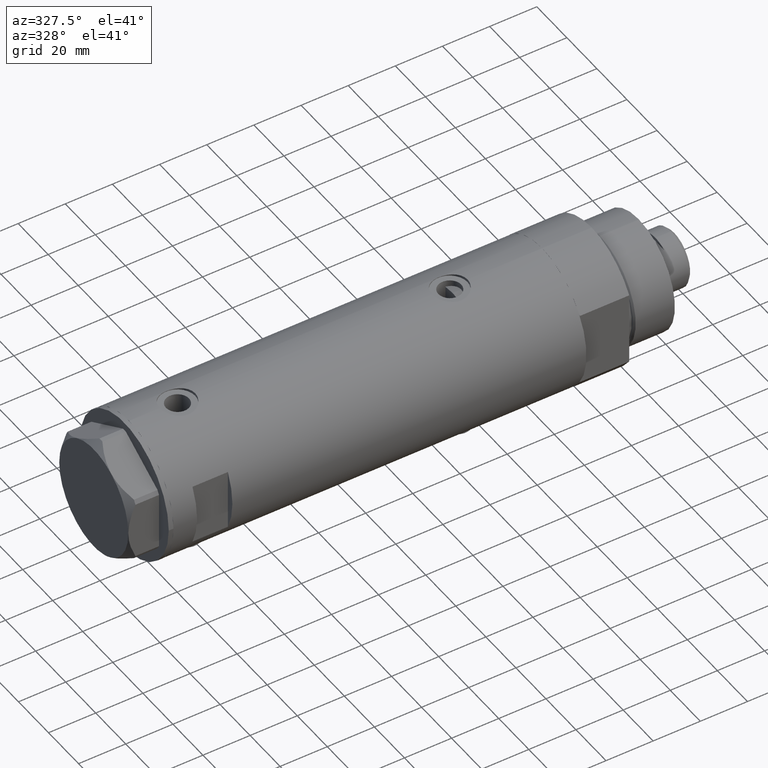
[diagram: clean part render]
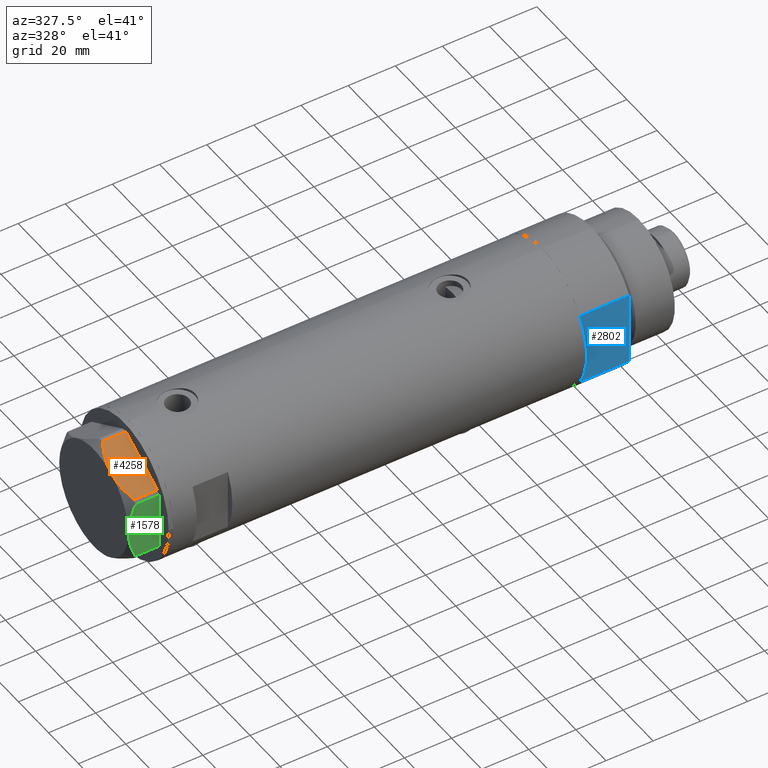
[diagram: same view with three faces highlighted in distinct colors, each labeled with its STEP entity id]
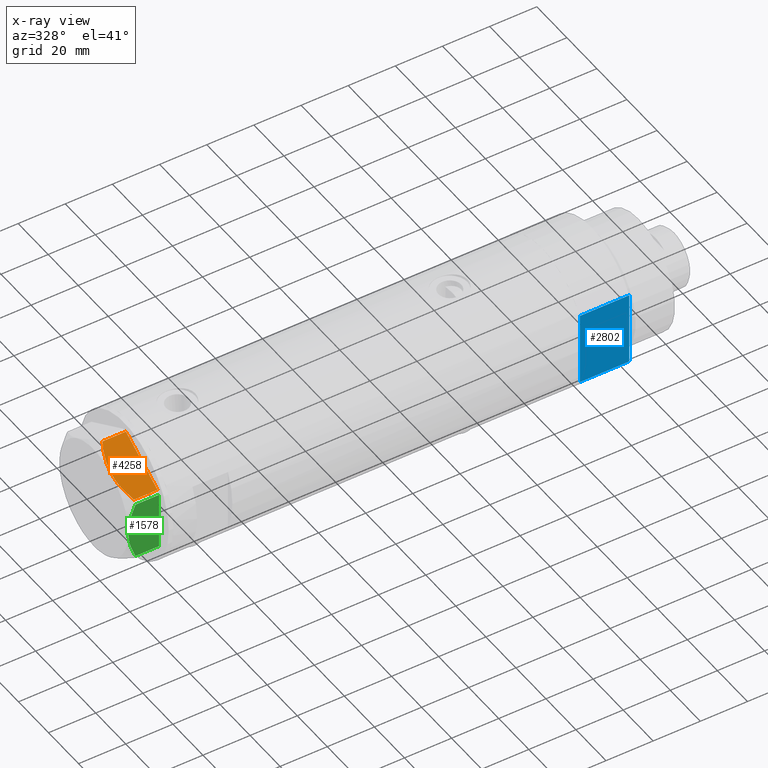
[diagram: x-ray of the same camera — body ghosted, the three highlighted faces saturated]
A machine part, auxiliary view with three faces highlighted in distinct colors.
The next image is the same camera in x-ray (body ghosted, the three faces saturated) — at least one of them is partly hidden behind the body in this view.
Their STEP definitions:

[orange] entity #4258 — the highlighted planar face has unit normal (-0, 0.5, -0.866).
#119 = DIRECTION ( 'NONE',  ( -0.000000000000000000, 0.000000000000000000, -1.000000000000000000 ) ) ;
#156 = CARTESIAN_POINT ( 'NONE',  ( -3.925137811029895563, -24.29193301091818213, 11.39727285399141365 ) ) ;
#220 = AXIS2_PLACEMENT_3D ( 'NONE', #2697, #1001, #325 ) ;
#224 = EDGE_CURVE ( 'NONE', #2280, #1416, #3265, .T. ) ;
#325 = DIRECTION ( 'NONE',  ( -0.8660254037844415942, 0.4999999999999950040, 0.000000000000000000 ) ) ;
#344 = FACE_OUTER_BOUND ( 'NONE', #2366, .T. ) ;
#367 = CARTESIAN_POINT ( 'NONE',  ( -11.49999999999990585, -19.91858428704219364, 13.00000000000000000 ) ) ;
#385 = CARTESIAN_POINT ( 'NONE',  ( -5.671686373602661035, -23.28356272816404271, 12.04068176582933702 ) ) ;
#460 = CARTESIAN_POINT ( 'NONE',  ( -5.229981517797923196, -23.53858114556527781, 11.89212886775844602 ) ) ;
#610 = DIRECTION ( 'NONE',  ( 0.8660254037844415942, -0.4999999999999950595, 0.000000000000000000 ) ) ;
#704 = CARTESIAN_POINT ( 'NONE',  ( -22.03005154776146313, -13.83905619136139364, 9.983800287807548912 ) ) ;
#778 = VERTEX_POINT ( 'NONE', #4168 ) ;
#870 = EDGE_CURVE ( 'NONE', #1416, #778, #1063, .T. ) ;
#938 = VECTOR ( 'NONE', #1657, 1000.000000000000000 ) ;
#973 = ORIENTED_EDGE ( 'NONE', *, *, #4438, .T. ) ;
#1001 = DIRECTION ( 'NONE',  ( 0.4999999999999950040, 0.8660254037844415942, -0.000000000000000000 ) ) ;
#1063 = B_SPLINE_CURVE_WITH_KNOTS ( 'NONE', 3,
 ( #3912, #3133, #3806, #385, #460, #1215, #156, #4355, #4016, #3945 ),
 .UNSPECIFIED., .F., .F.,
 ( 4, 2, 2, 2, 4 ),
 ( 0.01376519981810312224, 0.01998941321701588891, 0.02154546656674407451, 0.02310151991647226705, 0.02621362661592864171 ),
 .UNSPECIFIED. ) ;
#1215 = CARTESIAN_POINT ( 'NONE',  ( -4.357207709415887642, -24.04247733877630466, 11.57055225522972819 ) ) ;
#1316 = CARTESIAN_POINT ( 'NONE',  ( -22.03005154776146313, -13.83905619136139364, 9.983800287807548912 ) ) ;
#1320 = CARTESIAN_POINT ( 'NONE',  ( -15.16323225988328893, -17.80361615569431777, 12.63731396715695077 ) ) ;
#1371 = CARTESIAN_POINT ( 'NONE',  ( -22.03005154776132102, -13.83905619136147536, 0.000000000000000000 ) ) ;
#1416 = VERTEX_POINT ( 'NONE', #367 ) ;
#1596 = ORIENTED_EDGE ( 'NONE', *, *, #870, .F. ) ;
#1603 = CARTESIAN_POINT ( 'NONE',  ( -13.34348161667001698, -18.85424967941148822, 12.90784227772843806 ) ) ;
#1657 = DIRECTION ( 'NONE',  ( 0.000000000000000000, 0.000000000000000000, 1.000000000000000000 ) ) ;
#1861 = CARTESIAN_POINT ( 'NONE',  ( -0.9699484522383907681, -25.99811238272274494, 13.00000000000000000 ) ) ;
#1993 = LINE ( 'NONE', #1861, #938 ) ;
#2159 = ORIENTED_EDGE ( 'NONE', *, *, #2223, .T. ) ;
#2161 = CARTESIAN_POINT ( 'NONE',  ( -16.05322244309625290, -17.28978008384019915, 12.42689993760378542 ) ) ;
#2223 = EDGE_CURVE ( 'NONE', #3974, #2322, #4042, .T. ) ;
#2280 = VERTEX_POINT ( 'NONE', #1316 ) ;
#2322 = VERTEX_POINT ( 'NONE', #4406 ) ;
#2366 = EDGE_LOOP ( 'NONE', ( #2832, #973, #2159, #2483, #1596 ) ) ;
#2483 = ORIENTED_EDGE ( 'NONE', *, *, #3576, .T. ) ;
#2556 = CARTESIAN_POINT ( 'NONE',  ( -18.67981377008999644, -15.77331687414923422, 11.62937486882610827 ) ) ;
#2697 = CARTESIAN_POINT ( 'NONE',  ( -22.99999999999990408, -13.27905619136147841, 13.00000000000000000 ) ) ;
#2785 = CARTESIAN_POINT ( 'NONE',  ( -11.49999999999990585, -19.91858428704219364, 13.00000000000000000 ) ) ;
#2815 = LINE ( 'NONE', #3888, #4121 ) ;
#2832 = ORIENTED_EDGE ( 'NONE', *, *, #224, .F. ) ;
#3133 = CARTESIAN_POINT ( 'NONE',  ( -9.678244919010003500, -20.97037507344916563, 13.00000000000009237 ) ) ;
#3265 = B_SPLINE_CURVE_WITH_KNOTS ( 'NONE', 3,
 ( #704, #3830, #2556, #2161, #1320, #3572, #1603, #4353, #3510, #2785 ),
 .UNSPECIFIED., .F., .F.,
 ( 4, 2, 2, 2, 4 ),
 ( 0.001228959670438515206, 0.007497079744270818830, 0.01063113978118697053, 0.01219816979964504639, 0.01376519981810312224 ),
 .UNSPECIFIED. ) ;
#3510 = CARTESIAN_POINT ( 'NONE',  ( -11.95865151389046588, -19.65378171203314395, 13.00000000000009948 ) ) ;
#3572 = CARTESIAN_POINT ( 'NONE',  ( -13.80210138309694479, -18.58946543380922378, 12.85271263895580418 ) ) ;
#3576 = EDGE_CURVE ( 'NONE', #2322, #778, #1993, .T. ) ;
#3705 = CARTESIAN_POINT ( 'NONE',  ( -22.99999999999990408, -13.27905619136147841, 0.000000000000000000 ) ) ;
#3806 = CARTESIAN_POINT ( 'NONE',  ( -7.884645426989515649, -22.00591022298554833, 12.70765172847701052 ) ) ;
#3830 = CARTESIAN_POINT ( 'NONE',  ( -20.37350567916426058, -14.79546339452093662, 10.87778242614345992 ) ) ;
#3888 = CARTESIAN_POINT ( 'NONE',  ( -22.03005154776132102, -13.83905619136147536, 13.00000000000000000 ) ) ;
#3912 = CARTESIAN_POINT ( 'NONE',  ( -11.49999999999990585, -19.91858428704219364, 13.00000000000000000 ) ) ;
#3945 = CARTESIAN_POINT ( 'NONE',  ( -0.9699484522383853280, -25.99811238272275205, 9.983800287807632401 ) ) ;
#3974 = VERTEX_POINT ( 'NONE', #1371 ) ;
#4016 = CARTESIAN_POINT ( 'NONE',  ( -1.799196345396643304, -25.51934588838291162, 10.43131750950939640 ) ) ;
#4042 = LINE ( 'NONE', #3705, #4262 ) ;
#4119 = PLANE ( 'NONE',  #220 ) ;
#4121 = VECTOR ( 'NONE', #119, 1000.000000000000000 ) ;
#4168 = CARTESIAN_POINT ( 'NONE',  ( -0.9699484522383853280, -25.99811238272275205, 9.983800287807632401 ) ) ;
#4258 = ADVANCED_FACE ( 'NONE', ( #344 ), #4119, .F. ) ;
#4262 = VECTOR ( 'NONE', #610, 1000.000000000000000 ) ;
#4353 = CARTESIAN_POINT ( 'NONE',  ( -12.41906678023023325, -19.38796083407287085, 12.98168640760950865 ) ) ;
#4355 = CARTESIAN_POINT ( 'NONE',  ( -2.640413878806567638, -25.03366871902166935, 10.84420102443839262 ) ) ;
#4406 = CARTESIAN_POINT ( 'NONE',  ( -0.9699484522383873264, -25.99811238272275205, 0.000000000000000000 ) ) ;
#4438 = EDGE_CURVE ( 'NONE', #2280, #3974, #2815, .T. ) ;

[blue] entity #2802 — the highlighted planar face has unit normal (-0, 1, 0).
#49 = LINE ( 'NONE', #340, #2957 ) ;
#72 = VECTOR ( 'NONE', #2301, 1000.000000000000000 ) ;
#76 = VECTOR ( 'NONE', #600, 1000.000000000000000 ) ;
#340 = CARTESIAN_POINT ( 'NONE',  ( -15.66045976336583401, -25.00000000000000000, 21.00000000000000000 ) ) ;
#504 = VECTOR ( 'NONE', #994, 1000.000000000000000 ) ;
#531 = CARTESIAN_POINT ( 'NONE',  ( -15.66045976336583401, -25.00000000000000000, 0.000000000000000000 ) ) ;
#600 = DIRECTION ( 'NONE',  ( -0.000000000000000000, -0.000000000000000000, 1.000000000000000000 ) ) ;
#634 = CARTESIAN_POINT ( 'NONE',  ( -15.66045976336582690, -25.00000000000000000, 0.000000000000000000 ) ) ;
#683 = LINE ( 'NONE', #2350, #4331 ) ;
#751 = CARTESIAN_POINT ( 'NONE',  ( 15.66045976336583401, -25.00000000000000000, 0.000000000000000000 ) ) ;
#795 = AXIS2_PLACEMENT_3D ( 'NONE', #531, #2579, #3633 ) ;
#920 = EDGE_CURVE ( 'NONE', #2268, #1100, #2283, .T. ) ;
#937 = VERTEX_POINT ( 'NONE', #3338 ) ;
#994 = DIRECTION ( 'NONE',  ( -0.000000000000000000, -0.000000000000000000, 1.000000000000000000 ) ) ;
#1100 = VERTEX_POINT ( 'NONE', #3432 ) ;
#1243 = ORIENTED_EDGE ( 'NONE', *, *, #1558, .F. ) ;
#1259 = PLANE ( 'NONE',  #795 ) ;
#1462 = EDGE_CURVE ( 'NONE', #2268, #1629, #3006, .T. ) ;
#1558 = EDGE_CURVE ( 'NONE', #937, #4264, #2135, .T. ) ;
#1629 = VERTEX_POINT ( 'NONE', #3216 ) ;
#1653 = EDGE_LOOP ( 'NONE', ( #3441, #3444, #1243, #2685, #3148, #1892 ) ) ;
#1676 = DIRECTION ( 'NONE',  ( -1.000000000000000000, -0.000000000000000000, -0.000000000000000000 ) ) ;
#1863 = EDGE_CURVE ( 'NONE', #1629, #2821, #49, .T. ) ;
#1892 = ORIENTED_EDGE ( 'NONE', *, *, #1462, .T. ) ;
#2135 = LINE ( 'NONE', #3511, #2172 ) ;
#2172 = VECTOR ( 'NONE', #4028, 1000.000000000000000 ) ;
#2268 = VERTEX_POINT ( 'NONE', #3367 ) ;
#2283 = LINE ( 'NONE', #3615, #72 ) ;
#2301 = DIRECTION ( 'NONE',  ( -1.000000000000000000, -0.000000000000000000, -0.000000000000000000 ) ) ;
#2350 = CARTESIAN_POINT ( 'NONE',  ( -15.66045976336583401, -25.00000000000000000, 0.000000000000000000 ) ) ;
#2421 = EDGE_CURVE ( 'NONE', #4264, #2821, #2709, .T. ) ;
#2579 = DIRECTION ( 'NONE',  ( -0.000000000000000000, 1.000000000000000000, 0.000000000000000000 ) ) ;
#2685 = ORIENTED_EDGE ( 'NONE', *, *, #3875, .F. ) ;
#2709 = LINE ( 'NONE', #3725, #504 ) ;
#2802 = ADVANCED_FACE ( 'NONE', ( #2970 ), #1259, .F. ) ;
#2821 = VERTEX_POINT ( 'NONE', #3990 ) ;
#2957 = VECTOR ( 'NONE', #3775, 1000.000000000000000 ) ;
#2970 = FACE_OUTER_BOUND ( 'NONE', #1653, .T. ) ;
#3006 = LINE ( 'NONE', #751, #76 ) ;
#3148 = ORIENTED_EDGE ( 'NONE', *, *, #920, .F. ) ;
#3216 = CARTESIAN_POINT ( 'NONE',  ( 15.66045976336583045, -25.00000000000000000, 21.00000000000000355 ) ) ;
#3338 = CARTESIAN_POINT ( 'NONE',  ( -7.141428428542853091, -25.00000000000000000, 0.000000000000000000 ) ) ;
#3367 = CARTESIAN_POINT ( 'NONE',  ( 15.66045976336583401, -25.00000000000000000, 0.000000000000000000 ) ) ;
#3432 = CARTESIAN_POINT ( 'NONE',  ( 7.141428428542853091, -25.00000000000000000, 0.000000000000000000 ) ) ;
#3441 = ORIENTED_EDGE ( 'NONE', *, *, #1863, .T. ) ;
#3444 = ORIENTED_EDGE ( 'NONE', *, *, #2421, .F. ) ;
#3511 = CARTESIAN_POINT ( 'NONE',  ( -15.66045976336583401, -25.00000000000000000, 0.000000000000000000 ) ) ;
#3615 = CARTESIAN_POINT ( 'NONE',  ( -15.66045976336583401, -25.00000000000000000, 0.000000000000000000 ) ) ;
#3633 = DIRECTION ( 'NONE',  ( 0.000000000000000000, -0.000000000000000000, 1.000000000000000000 ) ) ;
#3725 = CARTESIAN_POINT ( 'NONE',  ( -15.66045976336583401, -25.00000000000000000, 0.000000000000000000 ) ) ;
#3775 = DIRECTION ( 'NONE',  ( -1.000000000000000000, -0.000000000000000000, -0.000000000000000000 ) ) ;
#3875 = EDGE_CURVE ( 'NONE', #1100, #937, #683, .T. ) ;
#3990 = CARTESIAN_POINT ( 'NONE',  ( -15.66045976336583045, -24.99999999999999645, 20.99999999999999645 ) ) ;
#4028 = DIRECTION ( 'NONE',  ( -1.000000000000000000, -0.000000000000000000, -0.000000000000000000 ) ) ;
#4264 = VERTEX_POINT ( 'NONE', #634 ) ;
#4331 = VECTOR ( 'NONE', #1676, 1000.000000000000000 ) ;

[green] entity #1578 — the highlighted planar face has unit normal (-0, 1, -0).
#5 = VECTOR ( 'NONE', #3829, 1000.000000000000000 ) ;
#43 = CARTESIAN_POINT ( 'NONE',  ( -22.99999999999991473, -11.68282849742337248, 10.20637235269541776 ) ) ;
#108 = ORIENTED_EDGE ( 'NONE', *, *, #121, .T. ) ;
#121 = EDGE_CURVE ( 'NONE', #4363, #3880, #1437, .T. ) ;
#132 = VECTOR ( 'NONE', #2152, 1000.000000000000000 ) ;
#289 = CARTESIAN_POINT ( 'NONE',  ( -23.00000000000004619, -8.112498833180673323E-14, 13.00000000000000000 ) ) ;
#295 = VERTEX_POINT ( 'NONE', #1085 ) ;
#402 = CARTESIAN_POINT ( 'NONE',  ( -22.99999999999995381, -0.5295934231897790889, 13.00000000000009237 ) ) ;
#448 = CARTESIAN_POINT ( 'NONE',  ( -22.99999999999999289, 12.15905619136132110, 9.983800287807621743 ) ) ;
#518 = B_SPLINE_CURVE_WITH_KNOTS ( 'NONE', 3,
 ( #289, #402, #1809, #1792, #1474, #2824, #3858, #3209, #4169, #2848, #3127, #2798, #43, #2542 ),
 .UNSPECIFIED., .F., .F.,
 ( 4, 2, 2, 2, 2, 2, 4 ),
 ( 0.04777139595992690307, 0.04934380568070230455, 0.05091621540147769909, 0.05406103484302849510, 0.05720585428457929111, 0.05877826400535468565, 0.06035067372613008019 ),
 .UNSPECIFIED. ) ;
#521 = LINE ( 'NONE', #2266, #4052 ) ;
#562 = B_SPLINE_CURVE_WITH_KNOTS ( 'NONE', 3,
 ( #4061, #3378, #1329, #3821, #1073, #2763, #2091, #2426, #3463, #1982 ),
 .UNSPECIFIED., .F., .F.,
 ( 4, 2, 2, 2, 4 ),
 ( 0.03516523594057417712, 0.03831677594541236381, 0.03989254594783145369, 0.04146831595025054357, 0.04777139595992690307 ),
 .UNSPECIFIED. ) ;
#768 = CARTESIAN_POINT ( 'NONE',  ( -22.99999999999999645, 13.27905619136132032, 0.000000000000000000 ) ) ;
#1073 = CARTESIAN_POINT ( 'NONE',  ( -22.99999999999997513, 8.246028007352348865, 11.57113180864690705 ) ) ;
#1085 = CARTESIAN_POINT ( 'NONE',  ( -22.99999999999990763, -12.15905619136149340, 9.983800287807616414 ) ) ;
#1135 = ORIENTED_EDGE ( 'NONE', *, *, #1489, .F. ) ;
#1147 = LINE ( 'NONE', #2189, #5 ) ;
#1201 = EDGE_CURVE ( 'NONE', #3164, #295, #518, .T. ) ;
#1230 = CARTESIAN_POINT ( 'NONE',  ( -23.00000000000004619, -8.112498833180673323E-14, 13.00000000000000000 ) ) ;
#1329 = CARTESIAN_POINT ( 'NONE',  ( -22.99999999999998579, 10.23890159976121517, 10.84081242829091707 ) ) ;
#1437 = LINE ( 'NONE', #768, #132 ) ;
#1474 = CARTESIAN_POINT ( 'NONE',  ( -22.99999999999994316, -2.643615312305168441, 12.85430456063626714 ) ) ;
#1489 = EDGE_CURVE ( 'NONE', #2587, #3164, #562, .T. ) ;
#1521 = DIRECTION ( 'NONE',  ( -3.527173405730720929E-15, 1.000000000000000000, 0.000000000000000000 ) ) ;
#1578 = ADVANCED_FACE ( 'NONE', ( #1859 ), #2895, .F. ) ;
#1792 = CARTESIAN_POINT ( 'NONE',  ( -22.99999999999993250, -2.119709279061928964, 12.90853521217319688 ) ) ;
#1809 = CARTESIAN_POINT ( 'NONE',  ( -22.99999999999994316, -1.063773509315741217, 12.98143808360682883 ) ) ;
#1859 = FACE_OUTER_BOUND ( 'NONE', #3331, .T. ) ;
#1926 = DIRECTION ( 'NONE',  ( 0.000000000000000000, 0.000000000000000000, 1.000000000000000000 ) ) ;
#1982 = CARTESIAN_POINT ( 'NONE',  ( -23.00000000000004619, -8.112498833180673323E-14, 13.00000000000000000 ) ) ;
#2001 = ORIENTED_EDGE ( 'NONE', *, *, #1201, .F. ) ;
#2091 = CARTESIAN_POINT ( 'NONE',  ( -22.99999999999997513, 6.734330413511418811, 12.03938974125266981 ) ) ;
#2119 = CARTESIAN_POINT ( 'NONE',  ( -22.99999999999999289, 12.15905619136131754, 0.000000000000000000 ) ) ;
#2152 = DIRECTION ( 'NONE',  ( 3.527173405730720141E-15, -1.000000000000000000, 0.000000000000000000 ) ) ;
#2189 = CARTESIAN_POINT ( 'NONE',  ( -22.99999999999999289, 12.15905619136131754, 13.00000000000000000 ) ) ;
#2266 = CARTESIAN_POINT ( 'NONE',  ( -22.99999999999990763, -12.15905619136148985, 13.00000000000000000 ) ) ;
#2426 = CARTESIAN_POINT ( 'NONE',  ( -22.99999999999996447, 4.194757081058973824, 12.70300035152520302 ) ) ;
#2542 = CARTESIAN_POINT ( 'NONE',  ( -22.99999999999990763, -12.15905619136149340, 9.983800287807616414 ) ) ;
#2587 = VERTEX_POINT ( 'NONE', #448 ) ;
#2618 = ORIENTED_EDGE ( 'NONE', *, *, #4458, .T. ) ;
#2763 = CARTESIAN_POINT ( 'NONE',  ( -22.99999999999997513, 7.239756182922193695, 11.89218606342285156 ) ) ;
#2798 = CARTESIAN_POINT ( 'NONE',  ( -22.99999999999990763, -11.20155944044818241, 10.42110268263274264 ) ) ;
#2824 = CARTESIAN_POINT ( 'NONE',  ( -22.99999999999992895, -4.203926054641974552, 12.64168122312250553 ) ) ;
#2848 = CARTESIAN_POINT ( 'NONE',  ( -22.99999999999991829, -9.734726261263313418, 11.02892470009565251 ) ) ;
#2895 = PLANE ( 'NONE',  #3308 ) ;
#3096 = EDGE_CURVE ( 'NONE', #2587, #4363, #1147, .T. ) ;
#3127 = CARTESIAN_POINT ( 'NONE',  ( -22.99999999999991473, -10.22738952213796715, 10.83247031367477398 ) ) ;
#3164 = VERTEX_POINT ( 'NONE', #1230 ) ;
#3209 = CARTESIAN_POINT ( 'NONE',  ( -22.99999999999992184, -7.253003311474400583, 11.90327681034764140 ) ) ;
#3244 = CARTESIAN_POINT ( 'NONE',  ( -22.99999999999999645, 13.27905619136132032, 13.00000000000000000 ) ) ;
#3308 = AXIS2_PLACEMENT_3D ( 'NONE', #3244, #3949, #1521 ) ;
#3331 = EDGE_LOOP ( 'NONE', ( #1135, #3507, #108, #2618, #2001 ) ) ;
#3378 = CARTESIAN_POINT ( 'NONE',  ( -22.99999999999998579, 11.20825071633914582, 10.42817330637845430 ) ) ;
#3463 = CARTESIAN_POINT ( 'NONE',  ( -22.99999999999996092, 2.122900714018063795, 13.00000000000009592 ) ) ;
#3507 = ORIENTED_EDGE ( 'NONE', *, *, #3096, .T. ) ;
#3821 = CARTESIAN_POINT ( 'NONE',  ( -22.99999999999997158, 8.748091966971372813, 11.39681897828457302 ) ) ;
#3829 = DIRECTION ( 'NONE',  ( 0.000000000000000000, 0.000000000000000000, -1.000000000000000000 ) ) ;
#3858 = CARTESIAN_POINT ( 'NONE',  ( -22.99999999999993250, -5.228918809624134134, 12.43333703384985611 ) ) ;
#3880 = VERTEX_POINT ( 'NONE', #4467 ) ;
#3949 = DIRECTION ( 'NONE',  ( 1.000000000000000000, 3.527173405730720929E-15, -0.000000000000000000 ) ) ;
#4052 = VECTOR ( 'NONE', #1926, 1000.000000000000000 ) ;
#4061 = CARTESIAN_POINT ( 'NONE',  ( -22.99999999999999289, 12.15905619136132110, 9.983800287807621743 ) ) ;
#4169 = CARTESIAN_POINT ( 'NONE',  ( -22.99999999999992184, -8.252113629125281236, 11.58164206268022234 ) ) ;
#4363 = VERTEX_POINT ( 'NONE', #2119 ) ;
#4458 = EDGE_CURVE ( 'NONE', #3880, #295, #521, .T. ) ;
#4467 = CARTESIAN_POINT ( 'NONE',  ( -22.99999999999990763, -12.15905619136148985, 0.000000000000000000 ) ) ;